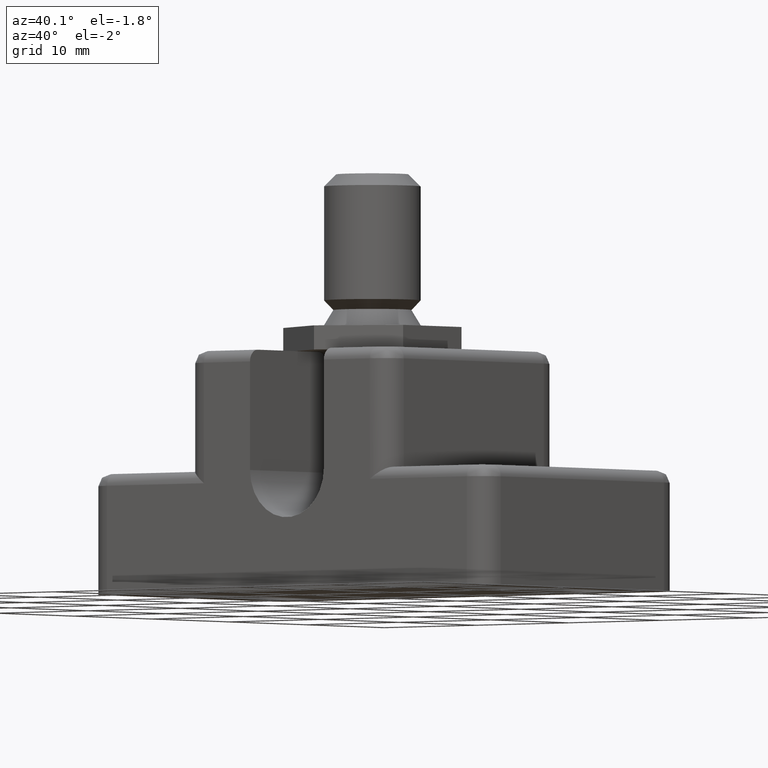
[diagram: clean part render]
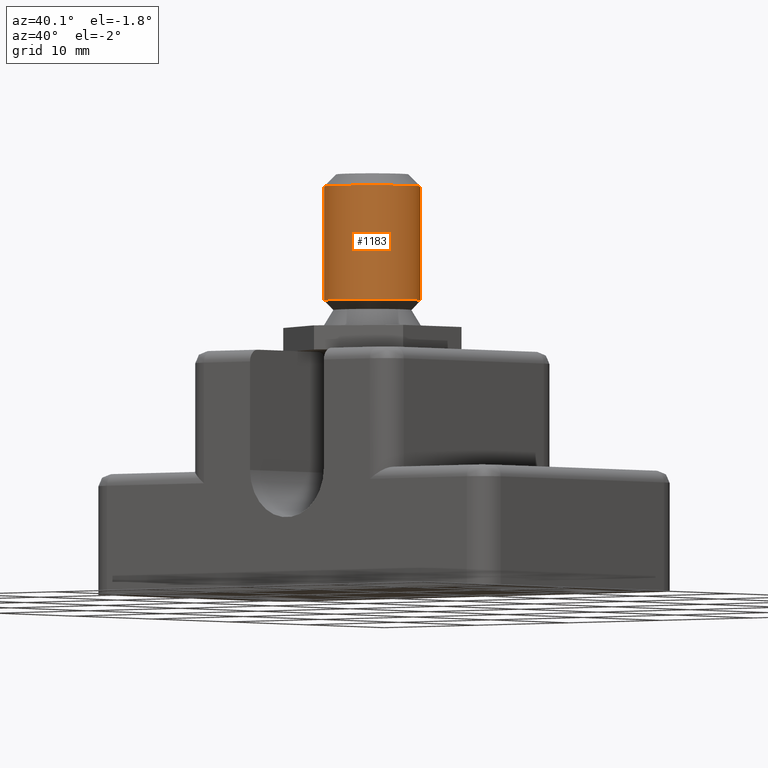
[diagram: same view with one face highlighted and labeled with its STEP entity id]
A machine part, auxiliary view. The second image highlights one B-rep face of the part: STEP entity #1183.
In plain terms, the highlighted cylindrical surface (bore or boss wall) has radius 4 mm, axis along (0, 0, -1).
Its self-contained STEP definition (entity closure, byte-faithful):
#66=CYLINDRICAL_SURFACE('',#1280,4.);
#93=LINE('',#1784,#190);
#190=VECTOR('',#1426,4.);
#293=FACE_OUTER_BOUND('',#362,.T.);
#362=EDGE_LOOP('',(#805,#806,#807,#808));
#437=CIRCLE('',#1278,4.);
#439=CIRCLE('',#1281,4.);
#507=VERTEX_POINT('',#1776);
#509=VERTEX_POINT('',#1782);
#620=EDGE_CURVE('',#507,#507,#437,.T.);
#623=EDGE_CURVE('',#509,#509,#439,.T.);
#624=EDGE_CURVE('',#509,#507,#93,.T.);
#805=ORIENTED_EDGE('',*,*,#623,.T.);
#806=ORIENTED_EDGE('',*,*,#624,.T.);
#807=ORIENTED_EDGE('',*,*,#620,.F.);
#808=ORIENTED_EDGE('',*,*,#624,.F.);
#1183=ADVANCED_FACE('',(#293),#66,.T.);
#1278=AXIS2_PLACEMENT_3D('',#1777,#1417,#1418);
#1280=AXIS2_PLACEMENT_3D('',#1781,#1422,#1423);
#1281=AXIS2_PLACEMENT_3D('',#1783,#1424,#1425);
#1417=DIRECTION('center_axis',(0.,0.,1.));
#1418=DIRECTION('ref_axis',(1.,0.,0.));
#1422=DIRECTION('center_axis',(0.,0.,-1.));
#1423=DIRECTION('ref_axis',(1.,0.,0.));
#1424=DIRECTION('center_axis',(0.,0.,1.));
#1425=DIRECTION('ref_axis',(1.,0.,0.));
#1426=DIRECTION('',(0.,0.,1.));
#1776=CARTESIAN_POINT('',(-4.,11.,33.7));
#1777=CARTESIAN_POINT('Origin',(0.,11.,33.7));
#1781=CARTESIAN_POINT('Origin',(0.,11.,28.972257105));
#1782=CARTESIAN_POINT('',(-4.,11.,24.24451421));
#1783=CARTESIAN_POINT('Origin',(0.,11.,24.24451421));
#1784=CARTESIAN_POINT('',(-4.,11.,28.972257105));